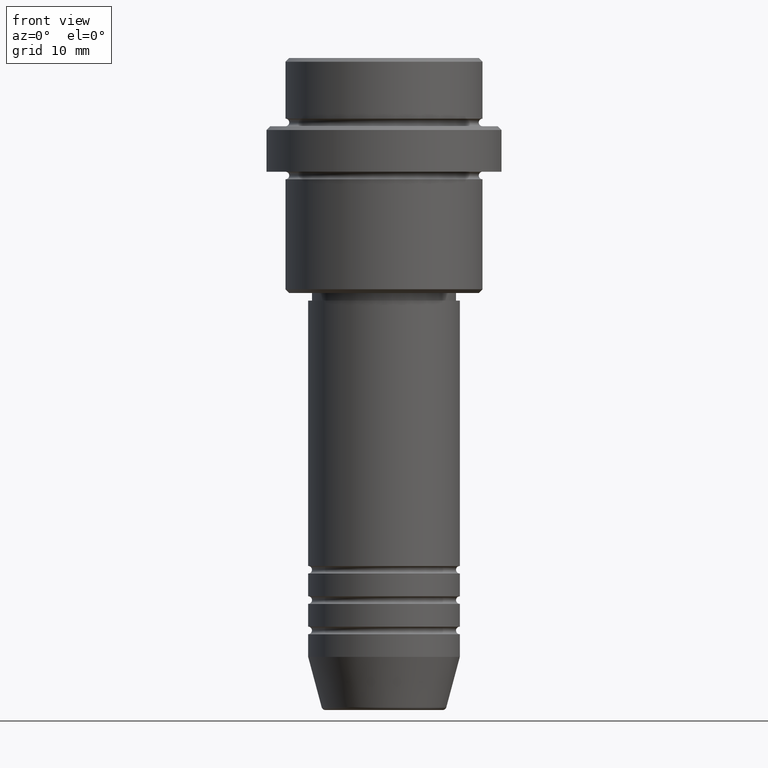
[diagram: clean part render]
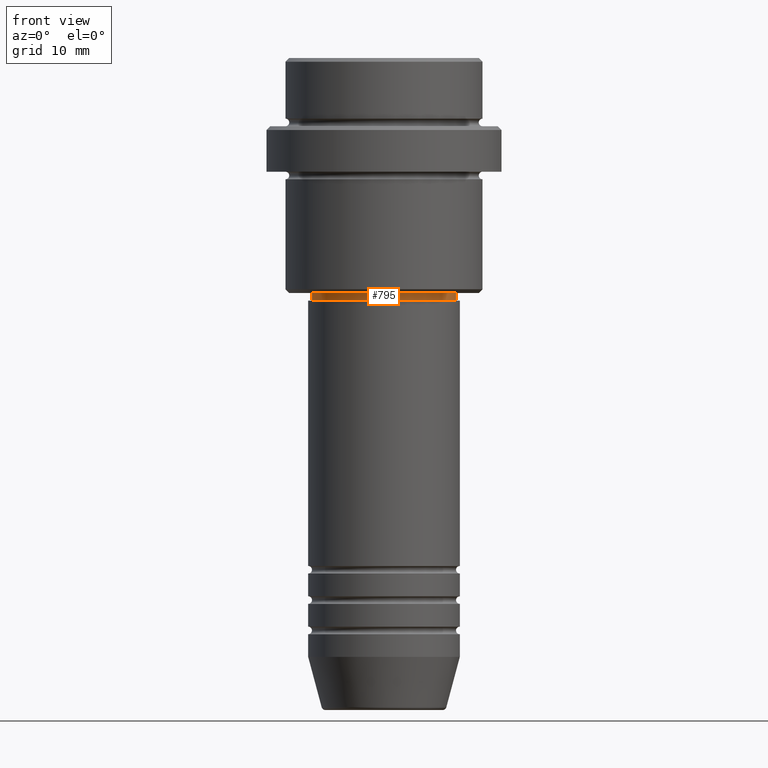
[diagram: same view with one face highlighted and labeled with its STEP entity id]
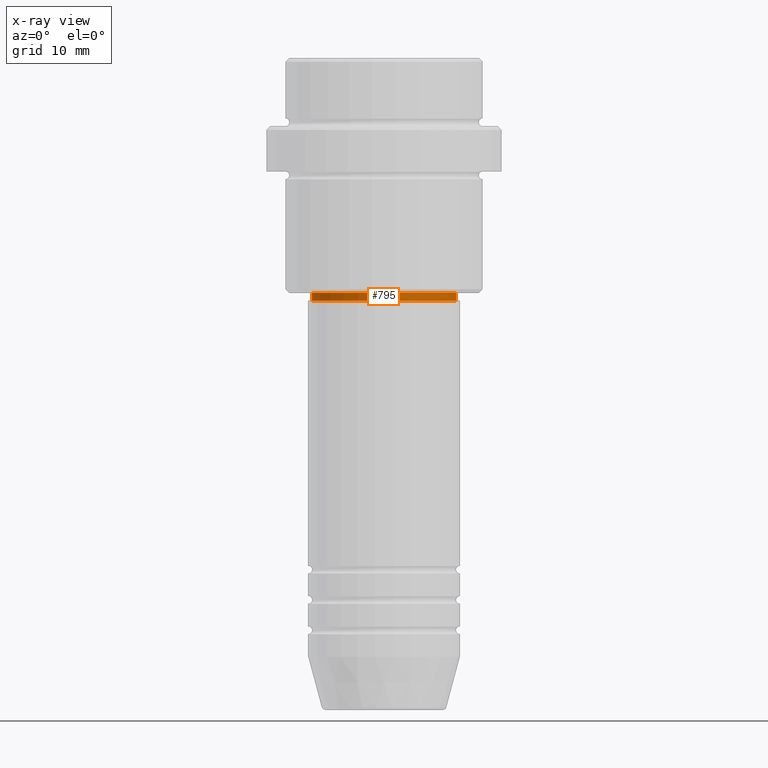
[diagram: x-ray of the same camera — body ghosted, the highlighted face saturated]
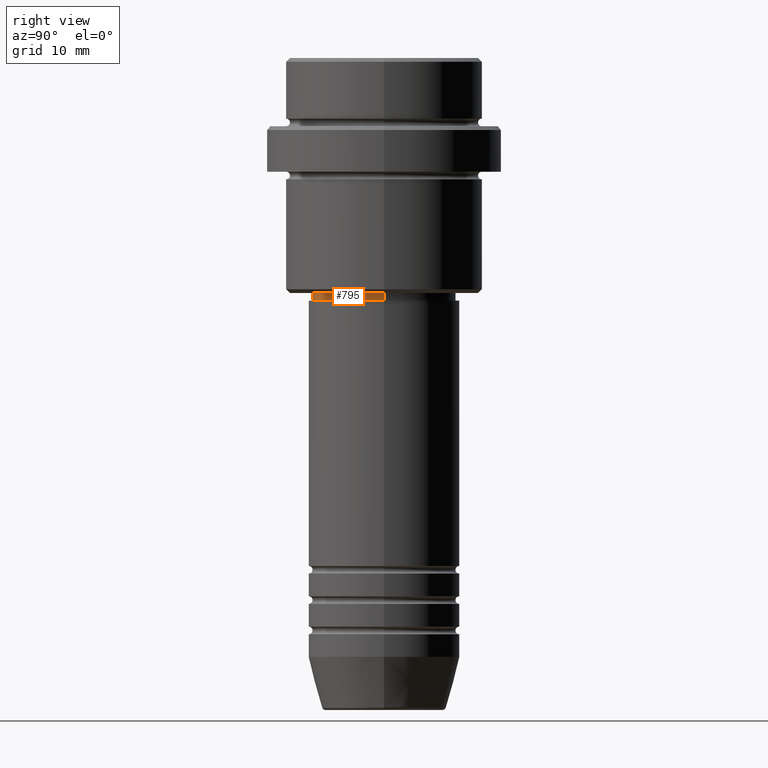
[diagram: same view with one face highlighted and labeled with its STEP entity id]
A machine part, front view. The second image highlights one B-rep face of the part: STEP entity #795.
The next image is the same camera in x-ray: the body ghosted, the highlighted face saturated — about 0% of this face is hidden behind the body in this view.
A second angle (right view) of the same face is appended — the face is thin or edge-on in the first view.
In plain terms, the highlighted cylindrical surface (partial cylindrical patch) has radius 9.5 mm, axis along (-0, -0, 1).
Its self-contained STEP definition (entity closure, byte-faithful):
#24 = DIRECTION ( 'NONE',  ( -0.000000000000000000, -0.000000000000000000, 1.000000000000000000 ) ) ;
#26 = CARTESIAN_POINT ( 'NONE',  ( -9.499999999999998224, 1.163414459189985288E-15, 0.000000000000000000 ) ) ;
#44 = DIRECTION ( 'NONE',  ( 1.000000000000000000, 0.000000000000000000, 0.000000000000000000 ) ) ;
#98 = FACE_OUTER_BOUND ( 'NONE', #106, .T. ) ;
#106 = EDGE_LOOP ( 'NONE', ( #233, #365, #823, #564 ) ) ;
#114 = CARTESIAN_POINT ( 'NONE',  ( 9.499999999999998224, 0.000000000000000000, -32.00000000000000000 ) ) ;
#154 = AXIS2_PLACEMENT_3D ( 'NONE', #1077, #640, #429 ) ;
#176 = AXIS2_PLACEMENT_3D ( 'NONE', #1023, #24, #44 ) ;
#193 = DIRECTION ( 'NONE',  ( -0.000000000000000000, -0.000000000000000000, 1.000000000000000000 ) ) ;
#198 = VECTOR ( 'NONE', #193, 1000.000000000000000 ) ;
#207 = DIRECTION ( 'NONE',  ( 1.000000000000000000, 0.000000000000000000, 0.000000000000000000 ) ) ;
#213 = DIRECTION ( 'NONE',  ( -0.000000000000000000, -0.000000000000000000, 1.000000000000000000 ) ) ;
#233 = ORIENTED_EDGE ( 'NONE', *, *, #1377, .F. ) ;
#244 = CARTESIAN_POINT ( 'NONE',  ( 9.499999999999996447, 0.000000000000000000, -31.00000000000000000 ) ) ;
#334 = AXIS2_PLACEMENT_3D ( 'NONE', #448, #213, #207 ) ;
#360 = VECTOR ( 'NONE', #472, 1000.000000000000000 ) ;
#365 = ORIENTED_EDGE ( 'NONE', *, *, #689, .T. ) ;
#429 = DIRECTION ( 'NONE',  ( 1.000000000000000000, 0.000000000000000000, 0.000000000000000000 ) ) ;
#448 = CARTESIAN_POINT ( 'NONE',  ( 0.000000000000000000, 0.000000000000000000, 0.000000000000000000 ) ) ;
#472 = DIRECTION ( 'NONE',  ( -0.000000000000000000, -0.000000000000000000, 1.000000000000000000 ) ) ;
#538 = CARTESIAN_POINT ( 'NONE',  ( -9.499999999999996447, 1.163414459189985091E-15, -31.00000000000000000 ) ) ;
#552 = EDGE_CURVE ( 'NONE', #639, #1330, #576, .T. ) ;
#564 = ORIENTED_EDGE ( 'NONE', *, *, #552, .F. ) ;
#576 = CIRCLE ( 'NONE', #176, 9.499999999999996447 ) ;
#603 = EDGE_CURVE ( 'NONE', #869, #1330, #646, .T. ) ;
#639 = VERTEX_POINT ( 'NONE', #538 ) ;
#640 = DIRECTION ( 'NONE',  ( -0.000000000000000000, -0.000000000000000000, 1.000000000000000000 ) ) ;
#646 = LINE ( 'NONE', #968, #198 ) ;
#689 = EDGE_CURVE ( 'NONE', #1204, #869, #1272, .T. ) ;
#775 = CYLINDRICAL_SURFACE ( 'NONE', #334, 9.499999999999998224 ) ;
#795 = ADVANCED_FACE ( 'NONE', ( #98 ), #775, .T. ) ;
#823 = ORIENTED_EDGE ( 'NONE', *, *, #603, .T. ) ;
#869 = VERTEX_POINT ( 'NONE', #114 ) ;
#939 = LINE ( 'NONE', #26, #360 ) ;
#968 = CARTESIAN_POINT ( 'NONE',  ( 9.499999999999998224, 0.000000000000000000, 0.000000000000000000 ) ) ;
#985 = CARTESIAN_POINT ( 'NONE',  ( -9.499999999999998224, 1.163414459189985288E-15, -32.00000000000000000 ) ) ;
#1023 = CARTESIAN_POINT ( 'NONE',  ( 0.000000000000000000, 0.000000000000000000, -31.00000000000000000 ) ) ;
#1077 = CARTESIAN_POINT ( 'NONE',  ( 0.000000000000000000, 0.000000000000000000, -32.00000000000000000 ) ) ;
#1204 = VERTEX_POINT ( 'NONE', #985 ) ;
#1272 = CIRCLE ( 'NONE', #154, 9.499999999999998224 ) ;
#1330 = VERTEX_POINT ( 'NONE', #244 ) ;
#1377 = EDGE_CURVE ( 'NONE', #1204, #639, #939, .T. ) ;